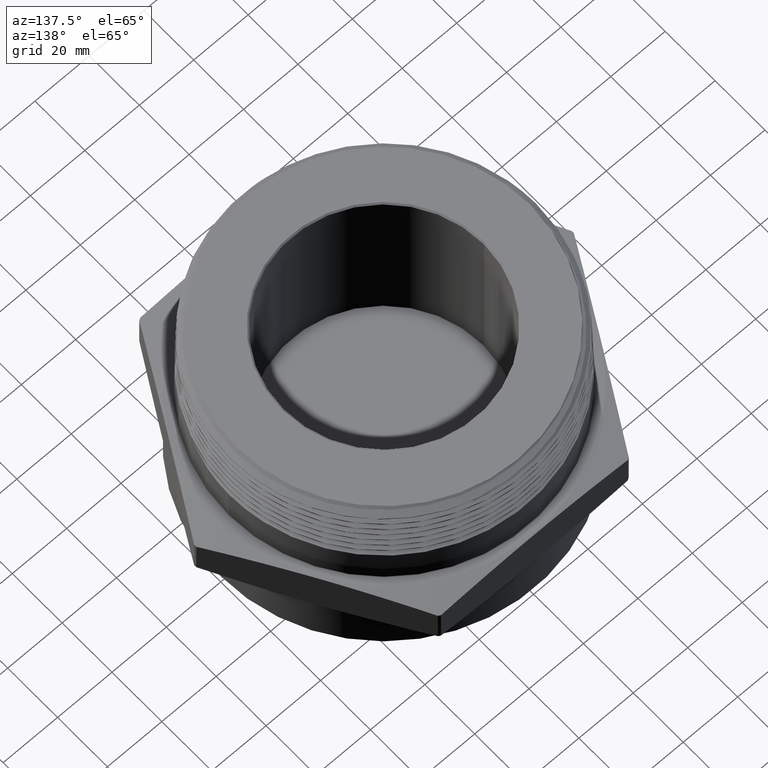
[diagram: clean part render]
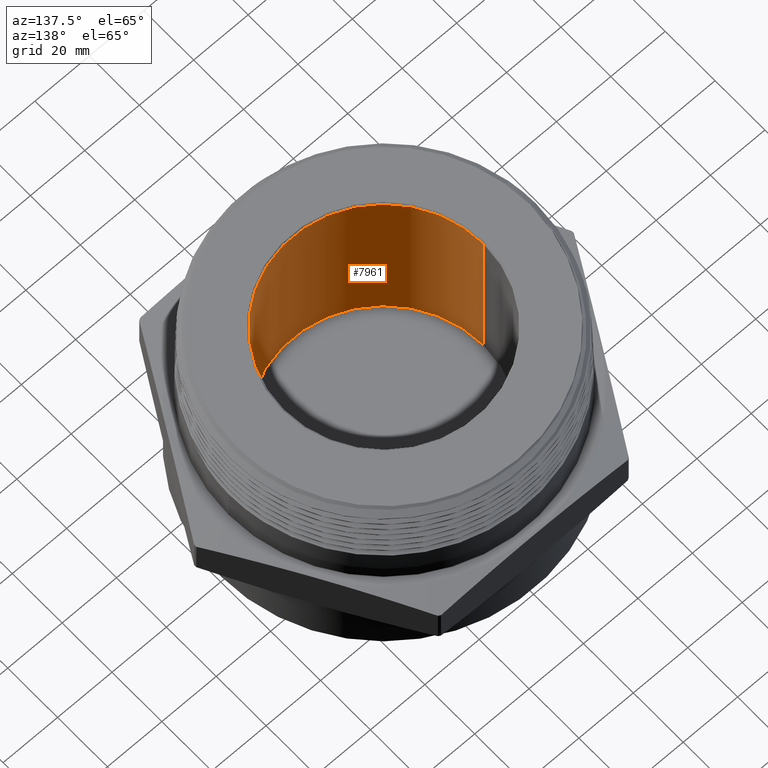
[diagram: same view with one face highlighted and labeled with its STEP entity id]
A machine part, auxiliary view. The second image highlights one B-rep face of the part: STEP entity #7961.
In plain terms, the highlighted cylindrical surface (partial cylindrical patch) has radius 36.703 mm, axis along (0, 0, -1).
Its self-contained STEP definition (entity closure, byte-faithful):
#1699 = CARTESIAN_POINT ( 'NONE',  ( 1.445000000000000100, 1.769614624767925500E-016, -0.4049999999999999200 ) ) ;
#1701 = CARTESIAN_POINT ( 'NONE',  ( -1.444999999999999800, 0.0000000000000000000, 2.149999999999999900 ) ) ;
#1704 = CARTESIAN_POINT ( 'NONE',  ( -1.445000000000000100, 0.0000000000000000000, -0.4049999999999999200 ) ) ;
#1705 = CARTESIAN_POINT ( 'NONE',  ( 1.444999999999999800, 1.769614624767925300E-016, 2.149999999999999900 ) ) ;
#2074 = VERTEX_POINT ( 'NONE', #1699 ) ;
#2076 = VERTEX_POINT ( 'NONE', #1701 ) ;
#2079 = VERTEX_POINT ( 'NONE', #1704 ) ;
#2080 = VERTEX_POINT ( 'NONE', #1705 ) ;
#2670 = CIRCLE ( 'NONE', #2775, 1.445000000000000100 ) ;
#2675 = LINE ( 'NONE', #3715, #2677 ) ;
#2677 = VECTOR ( 'NONE', #3716, 39.37007874015748100 ) ;
#2727 = AXIS2_PLACEMENT_3D ( 'NONE', #5862, #5863, #5860 ) ;
#2775 = AXIS2_PLACEMENT_3D ( 'NONE', #3726, #3727, #3728 ) ;
#2811 = AXIS2_PLACEMENT_3D ( 'NONE', #4291, #4292, #4293 ) ;
#2826 = EDGE_LOOP ( 'NONE', ( #2854, #2856, #2985, #2984 ) ) ;
#2854 = ORIENTED_EDGE ( 'NONE', *, *, #8348, .F. ) ;
#2856 = ORIENTED_EDGE ( 'NONE', *, *, #8350, .T. ) ;
#2972 = FACE_OUTER_BOUND ( 'NONE', #2826, .T. ) ;
#2974 = CYLINDRICAL_SURFACE ( 'NONE', #2727, 1.445000000000000100 ) ;
#2984 = ORIENTED_EDGE ( 'NONE', *, *, #8243, .F. ) ;
#2985 = ORIENTED_EDGE ( 'NONE', *, *, #8277, .T. ) ;
#3715 = CARTESIAN_POINT ( 'NONE',  ( -1.445000000000000100, 0.0000000000000000000, -0.7399999999999999900 ) ) ;
#3716 = DIRECTION ( 'NONE',  ( 2.070959839171675800E-018, -0.0000000000000000000, -1.000000000000000000 ) ) ;
#3726 = CARTESIAN_POINT ( 'NONE',  ( 1.755522052172291700E-018, 0.0000000000000000000, -0.4049999999999999200 ) ) ;
#3727 = DIRECTION ( 'NONE',  ( 2.070959839171675800E-018, -0.0000000000000000000, -1.000000000000000000 ) ) ;
#3728 = DIRECTION ( 'NONE',  ( 1.000000000000000000, 0.0000000000000000000, 0.0000000000000000000 ) ) ;
#4290 = DIRECTION ( 'NONE',  ( 2.070959839171675800E-018, -0.0000000000000000000, -1.000000000000000000 ) ) ;
#4291 = CARTESIAN_POINT ( 'NONE',  ( -3.535780336911339800E-018, 0.0000000000000000000, 2.149999999999999900 ) ) ;
#4292 = DIRECTION ( 'NONE',  ( 2.070959839171675800E-018, -0.0000000000000000000, -1.000000000000000000 ) ) ;
#4293 = DIRECTION ( 'NONE',  ( -1.000000000000000000, 0.0000000000000000000, 0.0000000000000000000 ) ) ;
#4295 = CARTESIAN_POINT ( 'NONE',  ( 1.445000000000000100, 1.769614624767925500E-016, -0.7399999999999999900 ) ) ;
#5051 = LINE ( 'NONE', #4295, #5057 ) ;
#5053 = CIRCLE ( 'NONE', #2811, 1.444999999999999800 ) ;
#5057 = VECTOR ( 'NONE', #4290, 39.37007874015748100 ) ;
#5860 = DIRECTION ( 'NONE',  ( -1.000000000000000000, 0.0000000000000000000, 0.0000000000000000000 ) ) ;
#5862 = CARTESIAN_POINT ( 'NONE',  ( 2.449293598294803500E-018, 0.0000000000000000000, -0.7399999999999999900 ) ) ;
#5863 = DIRECTION ( 'NONE',  ( 2.070959839171675800E-018, -0.0000000000000000000, -1.000000000000000000 ) ) ;
#7961 = ADVANCED_FACE ( 'NONE', ( #2972 ), #2974, .F. ) ;
#8243 = EDGE_CURVE ( 'NONE', #2076, #2079, #2675, .T. ) ;
#8277 = EDGE_CURVE ( 'NONE', #2074, #2079, #2670, .T. ) ;
#8348 = EDGE_CURVE ( 'NONE', #2080, #2076, #5053, .T. ) ;
#8350 = EDGE_CURVE ( 'NONE', #2080, #2074, #5051, .T. ) ;